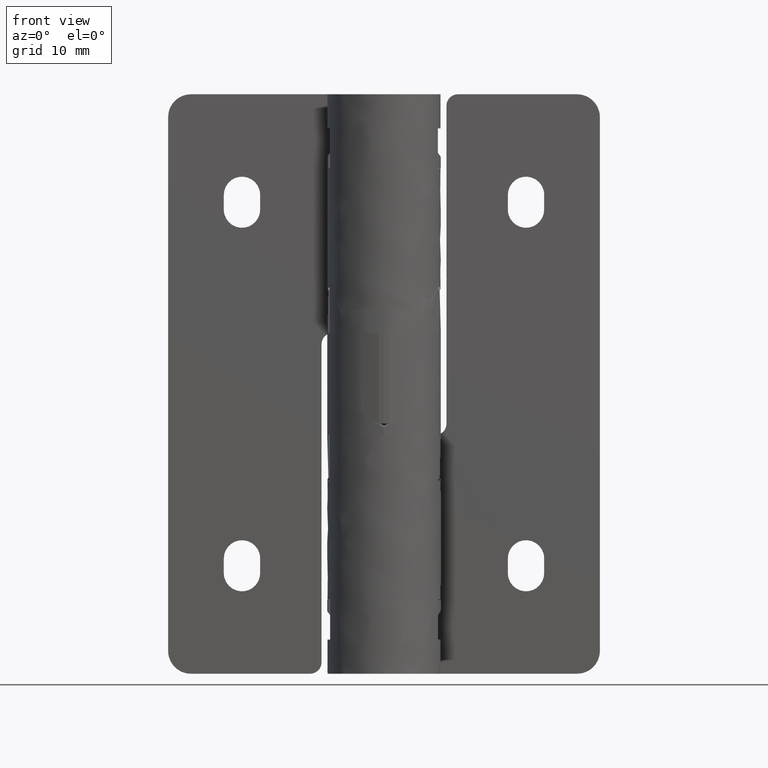
[diagram: clean part render]
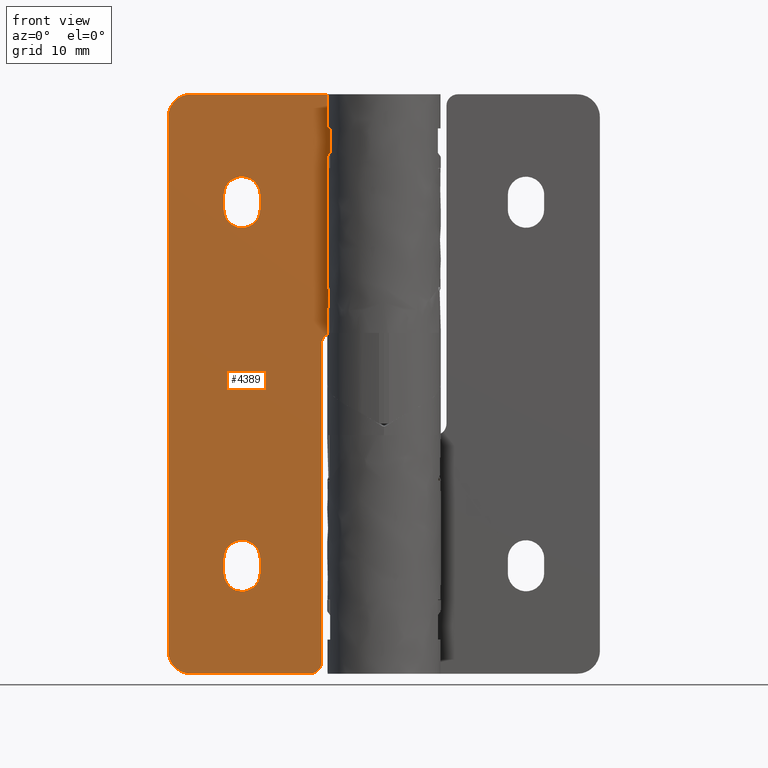
[diagram: same view with one face highlighted and labeled with its STEP entity id]
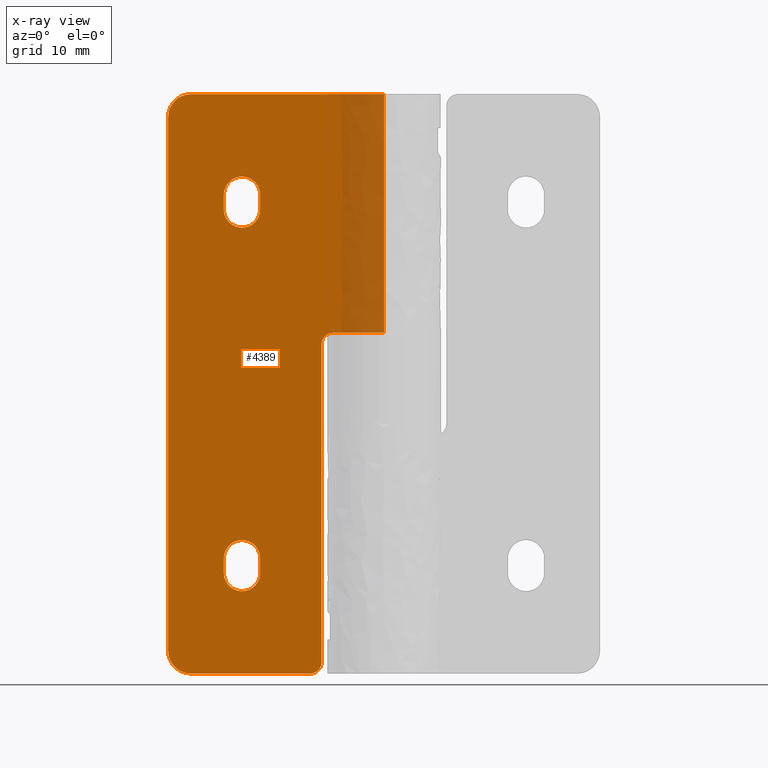
[diagram: x-ray of the same camera — body ghosted, the highlighted face saturated]
A machine part, front view. The second image highlights one B-rep face of the part: STEP entity #4389.
The next image is the same camera in x-ray: the body ghosted, the highlighted face saturated — about 10% of this face is hidden behind the body in this view.
In plain terms, the highlighted face is a freeform B-spline surface patch.
Its self-contained STEP definition (entity closure, byte-faithful):
#476=CARTESIAN_POINT('',(-0.000000220691190,3.500000992355230,50.500003999999997));
#477=VERTEX_POINT('',#476);
#1151=CARTESIAN_POINT('',(-0.000000219140492,3.500001000000000,51.000001000000012));
#1152=VERTEX_POINT('',#1151);
#1189=CARTESIAN_POINT('',(-0.000000219140492,3.500001000000000,51.000001000000012));
#1190=CARTESIAN_POINT('',(-0.000000220691190,3.500000992355230,50.500003999999997));
#1191=QUASI_UNIFORM_CURVE('',1,(#1189,#1190),.UNSPECIFIED.,.F.,.U.);
#1192=EDGE_CURVE('',#1152,#477,#1191,.T.);
#2786=CARTESIAN_POINT('',(-0.000000126437658,3.500000992355230,30.000002000000048));
#2787=VERTEX_POINT('',#2786);
#2788=CARTESIAN_POINT('',(-3.570542092411155,3.500001000000000,30.000002983583649));
#2789=VERTEX_POINT('',#2788);
#2790=CARTESIAN_POINT('',(-0.000000126437658,3.500000992355230,30.000002000000048));
#2791=CARTESIAN_POINT('',(-3.570542092411155,3.500001000000000,30.000002983583649));
#2792=QUASI_UNIFORM_CURVE('',1,(#2790,#2791),.UNSPECIFIED.,.F.,.U.);
#2793=EDGE_CURVE('',#2787,#2789,#2792,.T.);
#2840=CARTESIAN_POINT('',(-4.500000122588110,3.500001000000000,30.000002979310249));
#2841=VERTEX_POINT('',#2840);
#2842=CARTESIAN_POINT('',(-5.500000117990380,3.500001000000000,29.000002974712551));
#2843=VERTEX_POINT('',#2842);
#2844=CARTESIAN_POINT('',(-4.500000122588110,3.500001000000000,30.000002979310249));
#2845=CARTESIAN_POINT('',(-5.500000122588113,3.500000999991924,30.000002974712476));
#2846=CARTESIAN_POINT('',(-5.500000117990380,3.500000999991925,29.000002974712469));
#2854=(BOUNDED_CURVE()B_SPLINE_CURVE(2,(#2844,#2845,#2846),.UNSPECIFIED.,.F.,.U.)CURVE()GEOMETRIC_REPRESENTATION_ITEM()QUASI_UNIFORM_CURVE()RATIONAL_B_SPLINE_CURVE((1.0,0.707106781186548,1.0))REPRESENTATION_ITEM(''));
#2855=EDGE_CURVE('',#2841,#2843,#2854,.T.);
#2901=CARTESIAN_POINT('',(-5.499999989253850,3.500001000000000,1.000000974712450));
#2902=VERTEX_POINT('',#2901);
#2903=CARTESIAN_POINT('',(-6.499999984656120,3.500001000000000,0.000000970114717));
#2904=VERTEX_POINT('',#2903);
#2905=CARTESIAN_POINT('',(-5.499999989253850,3.500001000000000,1.000000974712450));
#2906=CARTESIAN_POINT('',(-5.499999984656117,3.500001000000000,0.000000974712483));
#2907=CARTESIAN_POINT('',(-6.499999984656117,3.500001000000000,0.000000970114750));
#2915=(BOUNDED_CURVE()B_SPLINE_CURVE(2,(#2905,#2906,#2907),.UNSPECIFIED.,.F.,.U.)CURVE()GEOMETRIC_REPRESENTATION_ITEM()QUASI_UNIFORM_CURVE()RATIONAL_B_SPLINE_CURVE((1.0,0.707106781186548,1.0))REPRESENTATION_ITEM(''));
#2916=EDGE_CURVE('',#2902,#2904,#2915,.T.);
#2979=CARTESIAN_POINT('',(-19.000001209945051,3.500001000000000,49.000000912643102));
#2980=VERTEX_POINT('',#2979);
#2986=CARTESIAN_POINT('',(-17.000001219140501,3.500001000000000,51.000000921838613));
#2987=VERTEX_POINT('',#2986);
#2988=CARTESIAN_POINT('',(-19.000001209945051,3.500001000000000,49.000000912643102));
#2989=CARTESIAN_POINT('',(-19.000139265074019,3.500001000000006,49.212735124627933));
#2990=CARTESIAN_POINT('',(-18.949901499217660,3.500000999999993,49.523529980745913));
#2991=CARTESIAN_POINT('',(-18.770953232425001,3.500001000000003,49.955540885910850));
#2992=CARTESIAN_POINT('',(-18.517106635297601,3.500001000000009,50.340693865817457));
#2993=CARTESIAN_POINT('',(-18.143037432272578,3.500000999999996,50.667403060684691));
#2994=CARTESIAN_POINT('',(-17.724422848778399,3.500000999999961,50.878008611352499));
#2995=CARTESIAN_POINT('',(-17.359972381005999,3.500001000000041,50.978870195915952));
#2996=CARTESIAN_POINT('',(-17.114535824710419,3.500001000000003,51.000007104597437));
#2997=CARTESIAN_POINT('',(-17.000001219140501,3.500001000000000,51.000000921838613));
#2998=B_SPLINE_CURVE_WITH_KNOTS('',3,(#2988,#2989,#2990,#2991,#2992,#2993,#2994,#2995,#2996,#2997),.UNSPECIFIED.,.F.,.U.,(4,1,1,1,1,1,1,4),(0.000000065940808,0.638139764702777,0.932668275506423,1.399007348172516,2.012585512337926,2.405298203339525,2.798006085707697,3.141612365755768),.UNSPECIFIED.);
#2999=EDGE_CURVE('',#2980,#2987,#2998,.T.);
#3040=CARTESIAN_POINT('',(-17.000000984656150,3.500001000000000,0.000000921838518));
#3041=VERTEX_POINT('',#3040);
#3047=CARTESIAN_POINT('',(-19.000000993851600,3.500001000000000,2.000000912643055));
#3048=VERTEX_POINT('',#3047);
#3049=CARTESIAN_POINT('',(-17.000000984656129,3.500001000000000,0.000000921838550));
#3050=CARTESIAN_POINT('',(-19.000000984656129,3.500001000000000,0.000000912643084));
#3051=CARTESIAN_POINT('',(-19.000000993851600,3.500001000000000,2.000000912643084));
#3059=(BOUNDED_CURVE()B_SPLINE_CURVE(2,(#3049,#3050,#3051),.UNSPECIFIED.,.F.,.U.)CURVE()GEOMETRIC_REPRESENTATION_ITEM()QUASI_UNIFORM_CURVE()RATIONAL_B_SPLINE_CURVE((1.0,0.707106781186548,1.0))REPRESENTATION_ITEM(''));
#3060=EDGE_CURVE('',#3041,#3048,#3059,.T.);
#3342=CARTESIAN_POINT('',(-0.000000220691190,3.500000992355230,50.500003999999997));
#3343=CARTESIAN_POINT('',(-0.000000126437658,3.500000992355230,30.000002000000048));
#3344=QUASI_UNIFORM_CURVE('',1,(#3342,#3343),.UNSPECIFIED.,.F.,.U.);
#3345=EDGE_CURVE('',#477,#2787,#3344,.T.);
#3825=CARTESIAN_POINT('',(-5.499999989253850,3.500001000000000,1.000000974712450));
#3826=CARTESIAN_POINT('',(-5.500000117990380,3.500001000000000,29.000002974712551));
#3827=QUASI_UNIFORM_CURVE('',1,(#3825,#3826),.UNSPECIFIED.,.F.,.U.);
#3828=EDGE_CURVE('',#2902,#2843,#3827,.T.);
#3848=CARTESIAN_POINT('',(-14.100001031323140,3.500001000000000,10.150000935171960));
#3849=VERTEX_POINT('',#3848);
#3855=CARTESIAN_POINT('',(-14.100001025346099,3.500001000000000,8.850000935171972));
#3856=VERTEX_POINT('',#3855);
#3857=CARTESIAN_POINT('',(-14.100001025346099,3.500001000000000,8.850000935171972));
#3858=CARTESIAN_POINT('',(-14.100001031323140,3.500001000000000,10.150000935171960));
#3859=QUASI_UNIFORM_CURVE('',1,(#3857,#3858),.UNSPECIFIED.,.F.,.U.);
#3860=EDGE_CURVE('',#3856,#3849,#3859,.T.);
#3911=CARTESIAN_POINT('',(-10.900000025346101,3.500001000000000,8.850000949884741));
#3912=VERTEX_POINT('',#3911);
#3913=CARTESIAN_POINT('',(-10.900000025346101,3.500001000000000,8.850000949884741));
#3914=CARTESIAN_POINT('',(-10.899984105753081,3.500001000000002,8.732202878359914));
#3915=CARTESIAN_POINT('',(-10.928289375541070,3.500001000000002,8.476946306638107));
#3916=CARTESIAN_POINT('',(-11.050402934024589,3.500000999999996,8.142164386758180));
#3917=CARTESIAN_POINT('',(-11.252782298968761,3.500001000000007,7.826845633319558));
#3918=CARTESIAN_POINT('',(-11.492237725059940,3.500000999999980,7.590321663640685));
#3919=CARTESIAN_POINT('',(-11.787707350711811,3.500001000000049,7.405772207427207));
#3920=CARTESIAN_POINT('',(-12.107728409318680,3.500000999999989,7.284566657160269));
#3921=CARTESIAN_POINT('',(-12.499778030704951,3.500000999999974,7.231291625573405));
#3922=CARTESIAN_POINT('',(-12.945563800392630,3.500001000000019,7.289013817900846));
#3923=CARTESIAN_POINT('',(-13.368198420948509,3.500000999999991,7.479462751720313));
#3924=CARTESIAN_POINT('',(-13.688257075364289,3.500001000000003,7.755617533703704));
#3925=CARTESIAN_POINT('',(-13.890800096939190,3.500000999999996,8.039564705424057));
#3926=CARTESIAN_POINT('',(-14.052238368230890,3.500001000000025,8.391934064109403));
#3927=CARTESIAN_POINT('',(-14.100132065823820,3.500000999999953,8.666720783710026));
#3928=CARTESIAN_POINT('',(-14.100001025346099,3.500001000000000,8.850000935171972));
#3929=B_SPLINE_CURVE_WITH_KNOTS('',3,(#3913,#3914,#3915,#3916,#3917,#3918,#3919,#3920,#3921,#3922,#3923,#3924,#3925,#3926,#3927,#3928),.UNSPECIFIED.,.F.,.U.,(4,1,1,1,1,1,1,1,1,1,1,1,1,4),(0.000000211064944,0.353399709172304,0.765755605191551,1.060293895689019,1.472638373075212,1.767175415181210,2.100968968665106,2.493688483355026,2.945236723816605,3.436127841765869,3.868114670746350,4.201923208185763,4.476802825635502,5.026580570666300),.UNSPECIFIED.);
#3930=EDGE_CURVE('',#3912,#3856,#3929,.T.);
#3953=CARTESIAN_POINT('',(-10.900000031323160,3.500001000000000,10.150000949884721));
#3954=VERTEX_POINT('',#3953);
#3955=CARTESIAN_POINT('',(-10.900000031323160,3.500001000000000,10.150000949884721));
#3956=CARTESIAN_POINT('',(-10.900000025346101,3.500001000000000,8.850000949884741));
#3957=QUASI_UNIFORM_CURVE('',1,(#3955,#3956),.UNSPECIFIED.,.F.,.U.);
#3958=EDGE_CURVE('',#3954,#3912,#3957,.T.);
#4006=CARTESIAN_POINT('',(-14.100001031323140,3.500001000000000,10.150000935171960));
#4007=CARTESIAN_POINT('',(-14.100017098669859,3.500000999999996,10.267799519710930));
#4008=CARTESIAN_POINT('',(-14.071708109304581,3.500001000000013,10.523052829384250));
#4009=CARTESIAN_POINT('',(-13.954130145908451,3.500000999999997,10.845444604920850));
#4010=CARTESIAN_POINT('',(-13.787116848192250,3.500001000000000,11.112736498238821));
#4011=CARTESIAN_POINT('',(-13.595657016019270,3.500000999999979,11.329283857881149));
#4012=CARTESIAN_POINT('',(-13.366299126237941,3.500001000000016,11.506018930707750));
#4013=CARTESIAN_POINT('',(-13.085654847681930,3.500001000000030,11.649451128823770));
#4014=CARTESIAN_POINT('',(-12.807375527912710,3.500000999999963,11.730137480427400));
#4015=CARTESIAN_POINT('',(-12.441245788070960,3.500000999999983,11.763982688047220));
#4016=CARTESIAN_POINT('',(-12.041323800938480,3.500001000000122,11.707185297089961));
#4017=CARTESIAN_POINT('',(-11.621808530603010,3.500000999999792,11.511890182763450));
#4018=CARTESIAN_POINT('',(-11.321748365701289,3.500001000000129,11.253014600558039));
#4019=CARTESIAN_POINT('',(-11.123757403406129,3.500000999999899,10.982512924782760));
#4020=CARTESIAN_POINT('',(-10.953679851604431,3.500001000000164,10.634223798470870));
#4021=CARTESIAN_POINT('',(-10.899839569891279,3.500000999999850,10.346376829476030));
#4022=CARTESIAN_POINT('',(-10.900000031323160,3.500001000000000,10.150000949884721));
#4023=B_SPLINE_CURVE_WITH_KNOTS('',3,(#4006,#4007,#4008,#4009,#4010,#4011,#4012,#4013,#4014,#4015,#4016,#4017,#4018,#4019,#4020,#4021,#4022),.UNSPECIFIED.,.F.,.U.,(4,1,1,1,1,1,1,1,1,1,1,1,1,1,4),(0.000000211105942,0.353399709210885,0.765755605226962,1.021022862794663,1.295918028764032,1.629716427858896,1.884980764888184,2.238420742794014,2.493688483375064,2.984506254156486,3.436127841778293,3.868114670755519,4.162652013502648,4.437533704446409,5.026580570666314),.UNSPECIFIED.);
#4024=EDGE_CURVE('',#3849,#3954,#4023,.T.);
#4073=CARTESIAN_POINT('',(-10.900000178450600,3.500001000000000,42.150001949884697));
#4074=VERTEX_POINT('',#4073);
#4080=CARTESIAN_POINT('',(-14.100000178450580,3.500001000000000,42.150001935171943));
#4081=VERTEX_POINT('',#4080);
#4082=CARTESIAN_POINT('',(-14.100000178450580,3.500001000000000,42.150001935171943));
#4083=CARTESIAN_POINT('',(-14.100102292809099,3.500000999999995,42.320183221642282));
#4084=CARTESIAN_POINT('',(-14.056760733305440,3.500001000000021,42.588456679929962));
#4085=CARTESIAN_POINT('',(-13.904393495407280,3.500000999999978,42.937908880210493));
#4086=CARTESIAN_POINT('',(-13.686594784211680,3.500001000000025,43.251388861845633));
#4087=CARTESIAN_POINT('',(-13.392434490553811,3.500000999999986,43.498889491673907));
#4088=CARTESIAN_POINT('',(-13.048769172931840,3.500001000000012,43.663929980106950));
#4089=CARTESIAN_POINT('',(-12.781098685103190,3.500000999999974,43.732731984936692));
#4090=CARTESIAN_POINT('',(-12.493630760878160,3.500001000000049,43.757492963993023));
#4091=CARTESIAN_POINT('',(-12.231243350951750,3.500000999999995,43.736513619451287));
#4092=CARTESIAN_POINT('',(-11.920650078754040,3.500000999999960,43.652618590063547));
#4093=CARTESIAN_POINT('',(-11.643167349156689,3.500001000000110,43.515080696509003));
#4094=CARTESIAN_POINT('',(-11.400812717955739,3.500000999999940,43.323517619519912));
#4095=CARTESIAN_POINT('',(-11.194963559061661,3.500001000000014,43.093599423433652));
#4096=CARTESIAN_POINT('',(-11.030645567600081,3.500001000000059,42.815638232598673));
#4097=CARTESIAN_POINT('',(-10.923306828294370,3.500000999999841,42.483786324242217));
#4098=CARTESIAN_POINT('',(-10.899983195018720,3.500001000000268,42.261264662997867));
#4099=CARTESIAN_POINT('',(-10.900000178450600,3.500001000000000,42.150001949884697));
#4100=B_SPLINE_CURVE_WITH_KNOTS('',3,(#4082,#4083,#4084,#4085,#4086,#4087,#4088,#4089,#4090,#4091,#4092,#4093,#4094,#4095,#4096,#4097,#4098,#4099),.UNSPECIFIED.,.F.,.U.,(4,1,1,1,1,1,1,1,1,1,1,1,1,1,1,4),(0.000000168052053,0.510501019115237,0.805038881965703,1.138845181438259,1.649369397204594,1.943859566207572,2.277668446388719,2.474020877223966,2.807818483948962,3.063076763994835,3.436116236630265,3.730649929027393,3.985917043375729,4.358988239269270,4.692793224097707,5.026579785243402),.UNSPECIFIED.);
#4101=EDGE_CURVE('',#4081,#4074,#4100,.T.);
#4123=CARTESIAN_POINT('',(-10.900000172473520,3.500001000000000,40.850001949884749));
#4124=VERTEX_POINT('',#4123);
#4130=CARTESIAN_POINT('',(-10.900000172473520,3.500001000000000,40.850001949884749));
#4131=CARTESIAN_POINT('',(-10.900000178450600,3.500001000000000,42.150001949884697));
#4132=QUASI_UNIFORM_CURVE('',1,(#4130,#4131),.UNSPECIFIED.,.F.,.U.);
#4133=EDGE_CURVE('',#4124,#4074,#4132,.T.);
#4179=CARTESIAN_POINT('',(-14.100000172473520,3.500001000000000,40.850001935172003));
#4180=VERTEX_POINT('',#4179);
#4186=CARTESIAN_POINT('',(-10.900000172473520,3.500001000000000,40.850001949884749));
#4187=CARTESIAN_POINT('',(-10.899989776174730,3.500001000000001,40.745286465150343));
#4188=CARTESIAN_POINT('',(-10.921275198263020,3.500000999999999,40.529307055540272));
#4189=CARTESIAN_POINT('',(-11.030372612542539,3.500000999999995,40.177294743533793));
#4190=CARTESIAN_POINT('',(-11.215751728320861,3.500001000000021,39.872248656917591));
#4191=CARTESIAN_POINT('',(-11.458955220777121,3.500000999999985,39.623104442040038));
#4192=CARTESIAN_POINT('',(-11.754629833788449,3.500001000000014,39.414743553886403));
#4193=CARTESIAN_POINT('',(-12.144792271028161,3.500000999999985,39.266978840883809));
#4194=CARTESIAN_POINT('',(-12.553201566788511,3.500001000000022,39.236913792532079));
#4195=CARTESIAN_POINT('',(-12.903974076060850,3.500001000000010,39.291166942791882));
#4196=CARTESIAN_POINT('',(-13.175979810813059,3.500000999999941,39.390386997028429));
#4197=CARTESIAN_POINT('',(-13.453818907221480,3.500001000000134,39.552299403569158));
#4198=CARTESIAN_POINT('',(-13.695891520684709,3.500000999999955,39.766326286735463));
#4199=CARTESIAN_POINT('',(-13.886973882924069,3.500001000000003,40.034203220920169));
#4200=CARTESIAN_POINT('',(-14.050486425416180,3.500001000000026,40.385399930000617));
#4201=CARTESIAN_POINT('',(-14.100164273836580,3.500000999999953,40.660172152824693));
#4202=CARTESIAN_POINT('',(-14.100000172473520,3.500001000000000,40.850001935172003));
#4203=B_SPLINE_CURVE_WITH_KNOTS('',3,(#4186,#4187,#4188,#4189,#4190,#4191,#4192,#4193,#4194,#4195,#4196,#4197,#4198,#4199,#4200,#4201,#4202),.UNSPECIFIED.,.F.,.U.,(4,1,1,1,1,1,1,1,1,1,1,1,1,1,4),(0.000000168016990,0.314147342567291,0.647957888723037,1.099574040097427,1.374465749307046,1.688592794950421,2.179483234859889,2.611469018341879,2.906004376559071,3.239800197448116,3.475385958550457,3.868108095246247,4.201906948427145,4.457172235727356,5.026579785243371),.UNSPECIFIED.);
#4204=EDGE_CURVE('',#4124,#4180,#4203,.T.);
#4221=CARTESIAN_POINT('',(-14.100000178450580,3.500001000000000,42.150001935171943));
#4222=CARTESIAN_POINT('',(-14.100000172473520,3.500001000000000,40.850001935172003));
#4223=QUASI_UNIFORM_CURVE('',1,(#4221,#4222),.UNSPECIFIED.,.F.,.U.);
#4224=EDGE_CURVE('',#4081,#4180,#4223,.T.);
#4235=CARTESIAN_POINT('',(-17.000000984656150,3.500001000000000,0.000000921838518));
#4236=CARTESIAN_POINT('',(-6.499999984656120,3.500001000000000,0.000000970114717));
#4237=QUASI_UNIFORM_CURVE('',1,(#4235,#4236),.UNSPECIFIED.,.F.,.U.);
#4238=EDGE_CURVE('',#3041,#2904,#4237,.T.);
#4255=CARTESIAN_POINT('',(-17.000001219140501,3.500001000000000,51.000000921838613));
#4256=CARTESIAN_POINT('',(-0.000000219140492,3.500001000000000,51.000001000000012));
#4257=QUASI_UNIFORM_CURVE('',1,(#4255,#4256),.UNSPECIFIED.,.F.,.U.);
#4258=EDGE_CURVE('',#2987,#1152,#4257,.T.);
#4322=CARTESIAN_POINT('',(-19.000001209945051,3.500001000000000,49.000000912643102));
#4323=CARTESIAN_POINT('',(-19.000000993851600,3.500001000000000,2.000000912643055));
#4324=QUASI_UNIFORM_CURVE('',1,(#4322,#4323),.UNSPECIFIED.,.F.,.U.);
#4325=EDGE_CURVE('',#2980,#3048,#4324,.T.);
#4354=CARTESIAN_POINT('',(-19.949051243977330,3.500001000000000,53.547450809431773));
#4355=CARTESIAN_POINT('',(-19.949050986067959,3.500001000000000,-2.547450360799130));
#4356=CARTESIAN_POINT('',(0.949050291891066,3.500001000000000,53.547450905515653));
#4357=CARTESIAN_POINT('',(0.949050549800436,3.500001000000000,-2.547450264715243));
#4358=B_SPLINE_SURFACE_WITH_KNOTS('',1,1,((#4354,#4356),(#4355,#4357)),.UNSPECIFIED.,.F.,.F.,.U.,(2,2),(2,2),(0.0,56.094901170230898),(0.0,20.898101535868399),.UNSPECIFIED.);
#4359=ORIENTED_EDGE('',*,*,#3828,.T.);
#4360=ORIENTED_EDGE('',*,*,#2855,.F.);
#4361=CARTESIAN_POINT('',(-4.500000122588110,3.500001000000000,30.000002979310249));
#4362=CARTESIAN_POINT('',(-3.570542092411155,3.500001000000000,30.000002983583649));
#4363=QUASI_UNIFORM_CURVE('',1,(#4361,#4362),.UNSPECIFIED.,.F.,.U.);
#4364=EDGE_CURVE('',#2841,#2789,#4363,.T.);
#4365=ORIENTED_EDGE('',*,*,#4364,.T.);
#4366=ORIENTED_EDGE('',*,*,#2793,.F.);
#4367=ORIENTED_EDGE('',*,*,#3345,.F.);
#4368=ORIENTED_EDGE('',*,*,#1192,.F.);
#4369=ORIENTED_EDGE('',*,*,#4258,.F.);
#4370=ORIENTED_EDGE('',*,*,#2999,.F.);
#4371=ORIENTED_EDGE('',*,*,#4325,.T.);
#4372=ORIENTED_EDGE('',*,*,#3060,.F.);
#4373=ORIENTED_EDGE('',*,*,#4238,.T.);
#4374=ORIENTED_EDGE('',*,*,#2916,.F.);
#4375=EDGE_LOOP('',(#4359,#4360,#4365,#4366,#4367,#4368,#4369,#4370,#4371,#4372,#4373,#4374));
#4376=FACE_OUTER_BOUND('',#4375,.T.);
#4377=ORIENTED_EDGE('',*,*,#4224,.F.);
#4378=ORIENTED_EDGE('',*,*,#4101,.T.);
#4379=ORIENTED_EDGE('',*,*,#4133,.F.);
#4380=ORIENTED_EDGE('',*,*,#4204,.T.);
#4381=EDGE_LOOP('',(#4377,#4378,#4379,#4380));
#4382=FACE_BOUND('',#4381,.T.);
#4383=ORIENTED_EDGE('',*,*,#3958,.T.);
#4384=ORIENTED_EDGE('',*,*,#3930,.T.);
#4385=ORIENTED_EDGE('',*,*,#3860,.T.);
#4386=ORIENTED_EDGE('',*,*,#4024,.T.);
#4387=EDGE_LOOP('',(#4383,#4384,#4385,#4386));
#4388=FACE_BOUND('',#4387,.T.);
#4389=ADVANCED_FACE('',(#4376,#4382,#4388),#4358,.T.);